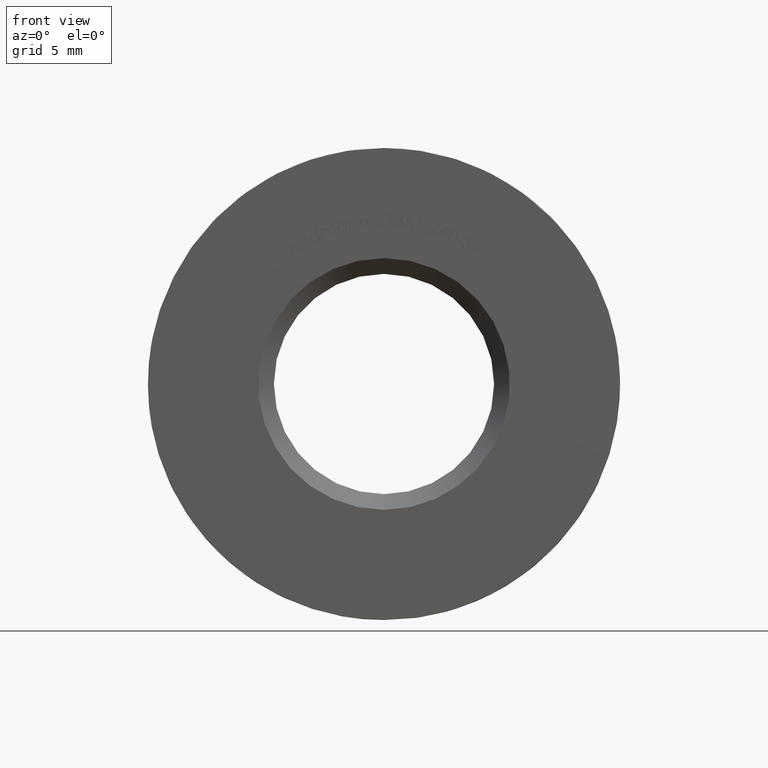
[diagram: clean part render]
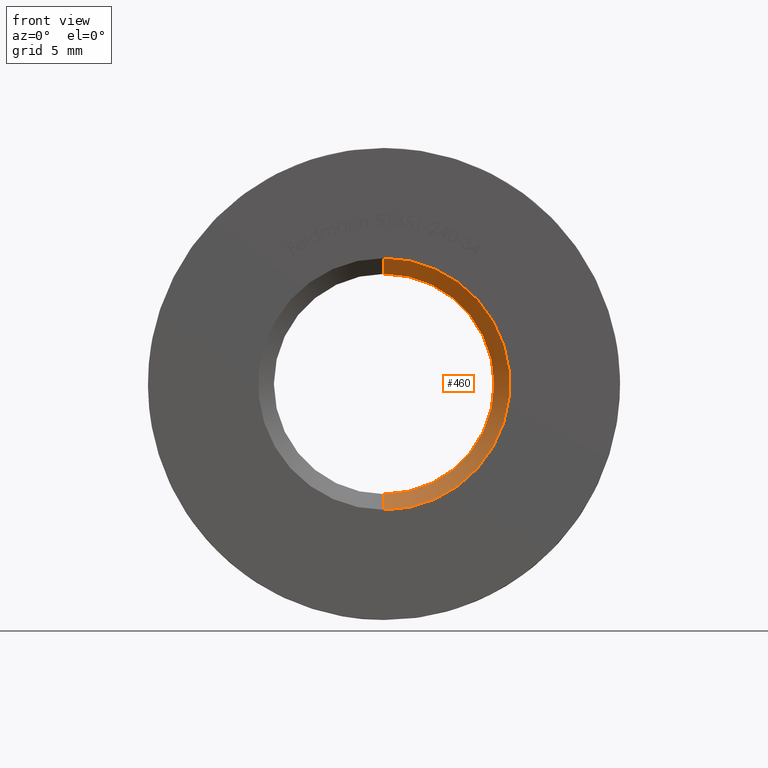
[diagram: same view with one face highlighted and labeled with its STEP entity id]
A machine part, front view. The second image highlights one B-rep face of the part: STEP entity #460.
In plain terms, the highlighted conical surface has half-angle 45 deg.
Its self-contained STEP definition (entity closure, byte-faithful):
#460 = ADVANCED_FACE ( 'NONE', ( #9781 ), #4472, .F. ) ;
#511 = DIRECTION ( 'NONE',  ( 0.0000000000000000000, 0.0000000000000000000, 1.000000000000000000 ) ) ;
#852 = DIRECTION ( 'NONE',  ( 0.0000000000000000000, 0.0000000000000000000, 1.000000000000000000 ) ) ;
#1520 = CARTESIAN_POINT ( 'NONE',  ( 9.797174393178809900E-016, 0.0000000000000000000, 7.999999999999986700 ) ) ;
#1544 = VECTOR ( 'NONE', #11458, 1000.000000000000100 ) ;
#1791 = CARTESIAN_POINT ( 'NONE',  ( 8.572527594031464300E-016, 0.9999999999999974500, -6.999999999999992900 ) ) ;
#1815 = VERTEX_POINT ( 'NONE', #10848 ) ;
#2000 = CARTESIAN_POINT ( 'NONE',  ( 0.0000000000000000000, 0.9999999999999974500, 0.0000000000000000000 ) ) ;
#2863 = DIRECTION ( 'NONE',  ( 0.0000000000000000000, 1.000000000000000000, 0.0000000000000000000 ) ) ;
#4079 = DIRECTION ( 'NONE',  ( -0.0000000000000000000, -1.000000000000000000, -0.0000000000000000000 ) ) ;
#4236 = DIRECTION ( 'NONE',  ( -0.0000000000000000000, -1.000000000000000000, -0.0000000000000000000 ) ) ;
#4472 = CONICAL_SURFACE ( 'NONE', #11909, 7.999999999999986700, 0.7853981633974460600 ) ;
#4822 = LINE ( 'NONE', #1520, #1544 ) ;
#4965 = VERTEX_POINT ( 'NONE', #11639 ) ;
#5305 = ORIENTED_EDGE ( 'NONE', *, *, #6433, .F. ) ;
#5338 = CARTESIAN_POINT ( 'NONE',  ( 0.0000000000000000000, 0.0000000000000000000, 0.0000000000000000000 ) ) ;
#5767 = CARTESIAN_POINT ( 'NONE',  ( 0.0000000000000000000, 0.0000000000000000000, -7.999999999999986700 ) ) ;
#6303 = EDGE_CURVE ( 'NONE', #10634, #9081, #7377, .T. ) ;
#6433 = EDGE_CURVE ( 'NONE', #4965, #1815, #4822, .T. ) ;
#6640 = EDGE_CURVE ( 'NONE', #1815, #9081, #12382, .T. ) ;
#6697 = EDGE_CURVE ( 'NONE', #10634, #4965, #8786, .T. ) ;
#6772 = DIRECTION ( 'NONE',  ( 0.0000000000000000000, -0.7071067811865490200, -0.7071067811865460200 ) ) ;
#7377 = LINE ( 'NONE', #5767, #12708 ) ;
#7424 = DIRECTION ( 'NONE',  ( 0.0000000000000000000, 0.0000000000000000000, -1.000000000000000000 ) ) ;
#8404 = EDGE_LOOP ( 'NONE', ( #5305, #11776, #11878, #12770 ) ) ;
#8786 = CIRCLE ( 'NONE', #13531, 6.999999999999992900 ) ;
#9081 = VERTEX_POINT ( 'NONE', #10142 ) ;
#9430 = CARTESIAN_POINT ( 'NONE',  ( 0.0000000000000000000, 0.0000000000000000000, 0.0000000000000000000 ) ) ;
#9781 = FACE_OUTER_BOUND ( 'NONE', #8404, .T. ) ;
#10142 = CARTESIAN_POINT ( 'NONE',  ( 0.0000000000000000000, 0.0000000000000000000, -7.999999999999986700 ) ) ;
#10634 = VERTEX_POINT ( 'NONE', #1791 ) ;
#10848 = CARTESIAN_POINT ( 'NONE',  ( 9.797174393178809900E-016, 0.0000000000000000000, 7.999999999999986700 ) ) ;
#11458 = DIRECTION ( 'NONE',  ( 8.659560562354913100E-017, -0.7071067811865490200, 0.7071067811865460200 ) ) ;
#11589 = AXIS2_PLACEMENT_3D ( 'NONE', #9430, #2863, #511 ) ;
#11639 = CARTESIAN_POINT ( 'NONE',  ( 0.0000000000000000000, 0.9999999999999974500, 6.999999999999992900 ) ) ;
#11776 = ORIENTED_EDGE ( 'NONE', *, *, #6697, .F. ) ;
#11878 = ORIENTED_EDGE ( 'NONE', *, *, #6303, .T. ) ;
#11909 = AXIS2_PLACEMENT_3D ( 'NONE', #5338, #4236, #7424 ) ;
#12382 = CIRCLE ( 'NONE', #11589, 7.999999999999986700 ) ;
#12708 = VECTOR ( 'NONE', #6772, 1000.000000000000100 ) ;
#12770 = ORIENTED_EDGE ( 'NONE', *, *, #6640, .F. ) ;
#13531 = AXIS2_PLACEMENT_3D ( 'NONE', #2000, #4079, #852 ) ;